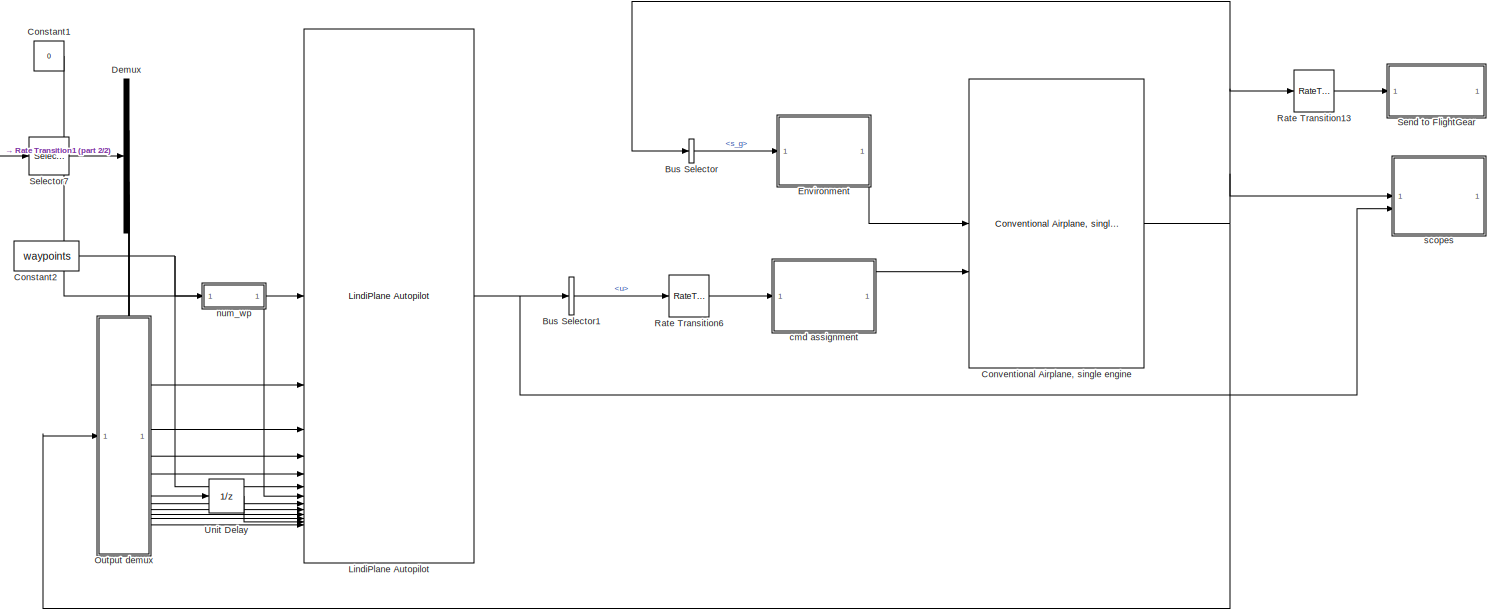
[diagram: root canvas - part 1/2, most of the canvas]
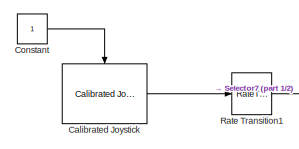
[diagram: root canvas - part 2/2, top left region]
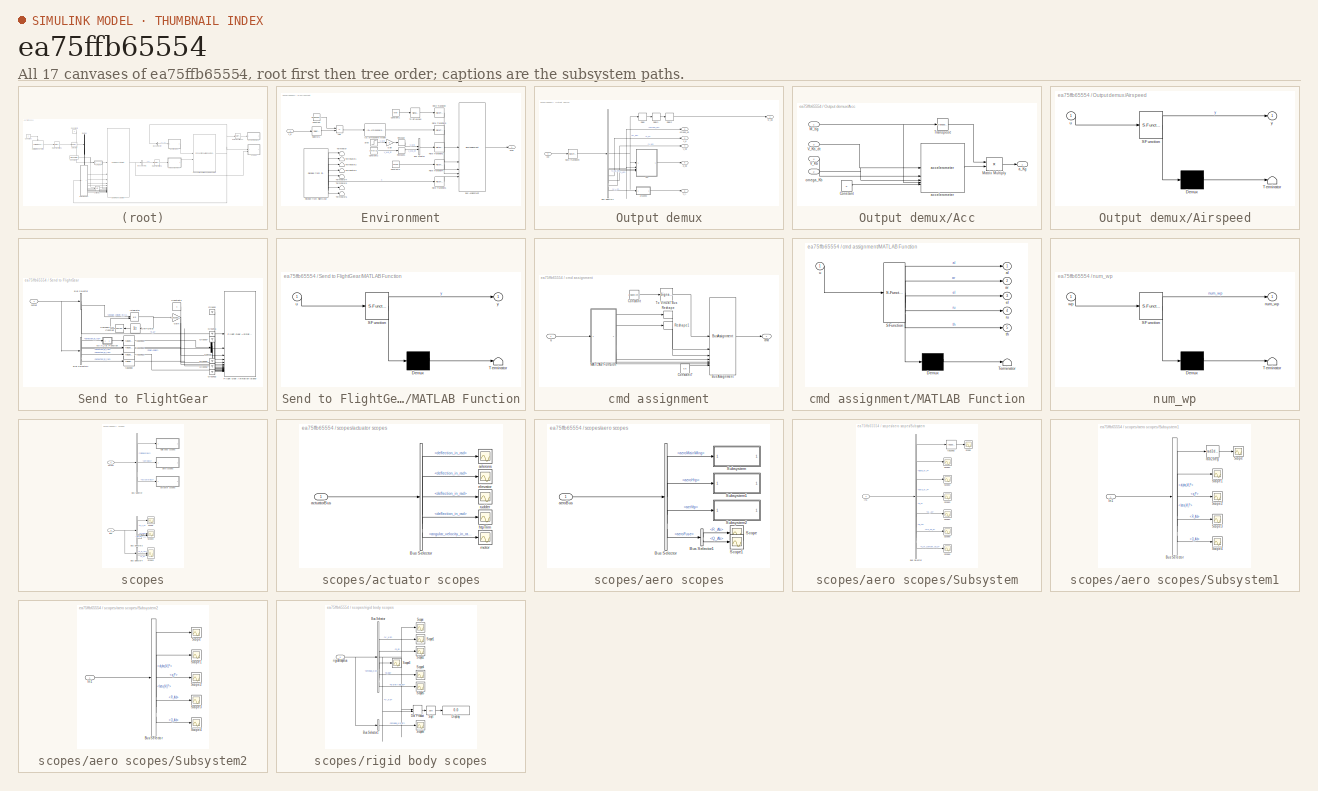
[diagram: thumbnail index - all 17 canvases of the model, root first then tree order]
MODEL slx_ea75ffb65554
KIND model
CONFIG AbsTol = auto
CONFIG EnableMultiTasking = off
CONFIG FixedStep = 1/400
CONFIG MaxStep = auto
CONFIG MinStep = auto
CONFIG RelTol = 1e-3
CONFIG SampleTimeConstraint = Unconstrained
CONFIG SolverName = ode1
CONFIG StartTime = 0.0
CONFIG StopTime = 60
BLOCK [BusSelector] Bus Selector
  OutputSignals = rigidBodyBus.s_g
BLOCK [BusSelector] Bus Selector1
  OutputSignals = inner_loop_indi.u
BLOCK [Reference] Calibrated Joystick  REF=joystick_lib/Calibrated Joystick  (lib defined in slx_c24d1f50ed98)
  SourceBlock = joystick_lib/Calibrated Joystick
  SourceProductName = LADAC
BLOCK [Constant] Constant
BLOCK [Constant] Constant1
  Value = 0
BLOCK [Constant] Constant2
  Value = waypoints
BLOCK [Reference] Conventional Airplane, single engine  REF=conventional_airplane_single_engine_lib/Conventional Airplane,  (lib defined in slx_fd2fac8ad290)
single engine
  SourceBlock = conventional_airplane_single_engine_lib/Conventional Airplane,\nsingle engine
  SourceProductName = LADAC
BLOCK [Demux] Demux
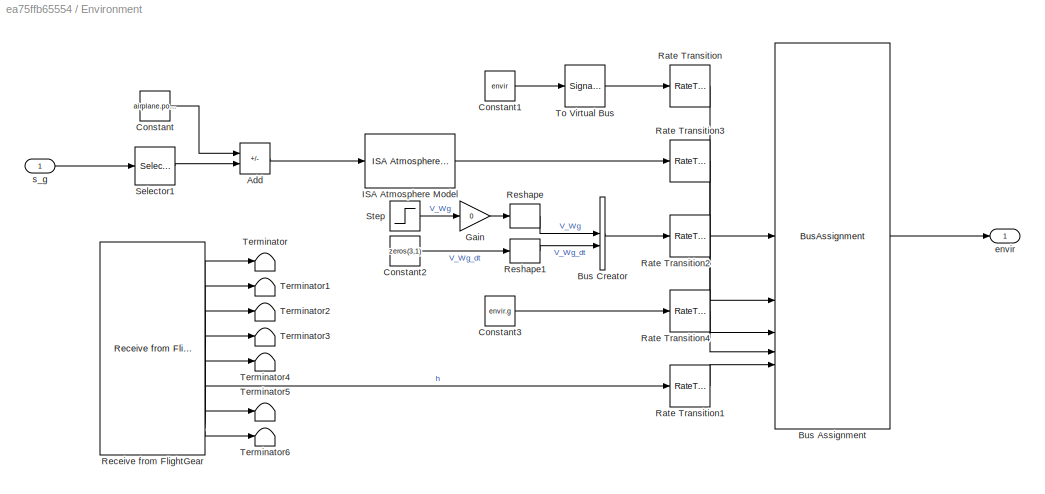
BLOCK [SubSystem] Environment
BLOCK [Sum] Environment/Add
  IconShape = rectangular
  Inputs = +-
BLOCK [BusAssignment] Environment/Bus Assignment
  AssignedSignals = atmosphere,wind,g,alt_ground
BLOCK [BusCreator] Environment/Bus Creator
  DisplayOption = bar
  InheritFromInputs = on
  Inputs = 2
BLOCK [Constant] Environment/Constant
  Value = airplane.posRef.alt
BLOCK [Constant] Environment/Constant1
  OutDataTypeStr = Bus: envirBus
  Value = envir
BLOCK [Constant] Environment/Constant2
  Value = zeros(3,1)
BLOCK [Constant] Environment/Constant3
  Value = envir.g
BLOCK [Gain] Environment/Gain
  Gain = 0
BLOCK [Reference] Environment/ISA Atmosphere Model  REF=atmosphere_lib/ISA Atmosphere Model  (lib defined in slx_398a0eb2fa35)
  SourceBlock = atmosphere_lib/ISA Atmosphere Model
  SourceProductName = LADAC
BLOCK [RateTransition] Environment/Rate Transition
BLOCK [RateTransition] Environment/Rate Transition1
BLOCK [RateTransition] Environment/Rate Transition2
BLOCK [RateTransition] Environment/Rate Transition3
BLOCK [RateTransition] Environment/Rate Transition4
BLOCK [Reference] Environment/Receive from FlightGear  REF=flightgear_visualization_lib/Receive from FlightGear  (lib defined in slx_722f04e3a3fc)
  SourceBlock = flightgear_visualization_lib/Receive from FlightGear
  SourceProductName = LADAC
BLOCK [Reshape] Environment/Reshape
  OutputDimensionality = Column vector (2-D)
BLOCK [Reshape] Environment/Reshape1
  OutputDimensionality = Column vector (2-D)
BLOCK [Selector] Environment/Selector1
  IndexOptions = Index vector (dialog)
  Indices = 3
  InputPortWidth = 3
  OutputSizes = 1
BLOCK [Step] Environment/Step
  After = [0;9;0]
  SampleTime = 0
  Time = 3
BLOCK [Terminator] Environment/Terminator
BLOCK [Terminator] Environment/Terminator1
BLOCK [Terminator] Environment/Terminator2
BLOCK [Terminator] Environment/Terminator3
BLOCK [Terminator] Environment/Terminator4
BLOCK [Terminator] Environment/Terminator5
BLOCK [Terminator] Environment/Terminator6
BLOCK [SignalConversion] Environment/To Virtual Bus
  ConversionOutput = Virtual bus
  OverrideOpt = off
BLOCK [Outport] Environment/envir
  VectorParamsAs1DForOutWhenUnconnected = off
BLOCK [Inport] Environment/s_g
BLOCK [Reference] LindiPlane Autopilot  REF=lindiPlane_lib/LindiPlane Autopilot
  SourceBlock = lindiPlane_lib/LindiPlane Autopilot
BLOCK [SubSystem] Output demux
BLOCK [SubSystem] Output demux/Acc
BLOCK [Constant] Output demux/Acc/Constant
  OutDataTypeStr = Inherit: Inherit via back propagation
  Value = 0
BLOCK [Inport] Output demux/Acc/M_bg
BLOCK [Product] Output demux/Acc/Matrix Multiply
  Multiplication = Matrix(*)
BLOCK [Math] Output demux/Acc/Transpose
  Operator = transpose
  SignedPower = on
BLOCK [Inport] Output demux/Acc/V_Kb
  Port = 4
BLOCK [Inport] Output demux/Acc/V_Kb_dt
  Port = 3
BLOCK [Outport] Output demux/Acc/a_Kg
  VectorParamsAs1DForOutWhenUnconnected = off
BLOCK [Reference] Output demux/Acc/accelerometer  REF=sensors_lib/accelerometer  (lib defined in mdl_052e9be48c24, mdl_88e42053cf8c, +1 more)
  SourceBlock = sensors_lib/accelerometer
  SourceProductName = LADAC
  SourceType = SubSystem
BLOCK [Inport] Output demux/Acc/omega_Kb
  Port = 2
BLOCK [SubSystem] Output demux/Airspeed
  ErrorFcn = Stateflow.Translate.translate
  PermitHierarchicalResolution = ExplicitOnly
  SFBlockType = MATLAB Function
  TreatAsAtomicUnit = on
BLOCK [Demux] Output demux/Airspeed/ Demux 
  Outputs = 1
BLOCK [S-Function] Output demux/Airspeed/ SFunction 
  EnableBusSupport = on
  FunctionName = sf_sfun
  PortCounts = [1 2]
  SFcnIsStateOwnerBlock = off
  SFunctionDeploymentMode = off
  Tag = Stateflow S-Function 1
BLOCK [Terminator] Output demux/Airspeed/ Terminator 
BLOCK [Inport] Output demux/Airspeed/u
BLOCK [Outport] Output demux/Airspeed/y
  VectorParamsAs1DForOutWhenUnconnected = off
BLOCK [BusSelector] Output demux/Bus Selector2
  OutputSignals = rigidBodyBus.M_bg,rigidBodyBus.omega_Kb,rigidBodyBus.s_g,rigidBodyBus.V_Kg,rigidBodyBus.V_Kb_dt,rigidBodyBus.V_Kb,aeroBus.aeroMainWing.aeroAxes.V_A_P
BLOCK [Delay] Output demux/Delay
  DelayLength = 1
  InitialCondition = eye(3)
  InputPortMap = u0
BLOCK [Delay] Output demux/Delay1
  DelayLength = 1
  InitialCondition = eye(3)
  InputPortMap = u0
BLOCK [Delay] Output demux/Delay2
  DelayLength = 1
  InitialCondition = eye(3)
  InputPortMap = u0
BLOCK [Outport] Output demux/M_bg
  VectorParamsAs1DForOutWhenUnconnected = off
BLOCK [RateTransition] Output demux/Rate Transition9
BLOCK [Outport] Output demux/V_A
  Port = 6
  VectorParamsAs1DForOutWhenUnconnected = off
BLOCK [Outport] Output demux/V_Kg
  Port = 4
  VectorParamsAs1DForOutWhenUnconnected = off
BLOCK [Outport] Output demux/a_Kg
  Port = 5
  VectorParamsAs1DForOutWhenUnconnected = off
BLOCK [Outport] Output demux/omega_Kb
  Port = 2
  VectorParamsAs1DForOutWhenUnconnected = off
BLOCK [Inport] Output demux/out
BLOCK [Outport] Output demux/s_g
  Port = 3
  VectorParamsAs1DForOutWhenUnconnected = off
BLOCK [RateTransition] Rate Transition1
BLOCK [RateTransition] Rate Transition13
  OutPortSampleTime = 1/50
BLOCK [RateTransition] Rate Transition6
BLOCK [Selector] Selector7
  IndexOptions = Index vector (dialog)
  Indices = [1:4]
  InputPortWidth = 8
  OutputSizes = 1
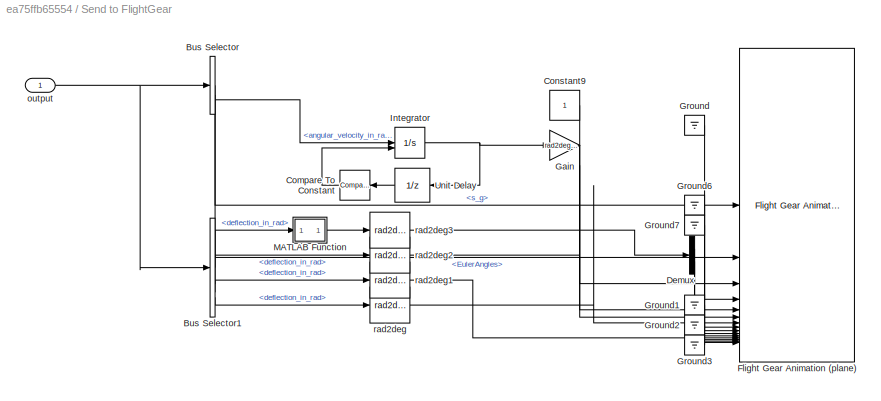
BLOCK [SubSystem] Send to FlightGear
BLOCK [BusSelector] Send to FlightGear/Bus Selector
  OutputSignals = rigidBodyBus.s_g,rigidBodyBus.EulerAngles,actuatorBus.motorBus.angular_velocity_in_rad_per_s
BLOCK [BusSelector] Send to FlightGear/Bus Selector1
  OutputSignals = actuatorBus.aileronsBus.deflection_in_rad,actuatorBus.elevatorBus.deflection_in_rad,actuatorBus.rudderBus.deflection_in_rad,actuatorBus.htpTrimBus.deflection_in_rad
BLOCK [Reference] Send to FlightGear/Compare To Constant  REF=simulink/Logic and Bit
Operations/Compare
To Constant
  NameLocation = top
  SourceBlock = simulink/Logic and Bit\nOperations/Compare\nTo Constant
  SourceType = Compare To Constant
BLOCK [Constant] Send to FlightGear/Constant9
BLOCK [Demux] Send to FlightGear/Demux
  Outputs = 2
BLOCK [Reference] Send to FlightGear/Flight Gear Animation (plane)  REF=flightgear_visualization_lib/Flight Gear Animation (plane)  (lib defined in slx_722f04e3a3fc)
  SourceBlock = flightgear_visualization_lib/Flight Gear Animation (plane)
  SourceProductName = LADAC
BLOCK [Gain] Send to FlightGear/Gain
  Gain = rad2deg([1;0;0;0])
BLOCK [Ground] Send to FlightGear/Ground
BLOCK [Ground] Send to FlightGear/Ground1
BLOCK [Ground] Send to FlightGear/Ground2
BLOCK [Ground] Send to FlightGear/Ground3
BLOCK [Ground] Send to FlightGear/Ground6
BLOCK [Ground] Send to FlightGear/Ground7
BLOCK [Integrator] Send to FlightGear/Integrator
  ExternalReset = rising
BLOCK [SubSystem] Send to FlightGear/MATLAB Function
  ErrorFcn = Stateflow.Translate.translate
  PermitHierarchicalResolution = ExplicitOnly
  SFBlockType = MATLAB Function
  TreatAsAtomicUnit = on
BLOCK [Demux] Send to FlightGear/MATLAB Function/ Demux 
  Outputs = 1
BLOCK [S-Function] Send to FlightGear/MATLAB Function/ SFunction 
  EnableBusSupport = on
  FunctionName = sf_sfun
  PortCounts = [1 2]
  SFcnIsStateOwnerBlock = off
  SFunctionDeploymentMode = off
  Tag = Stateflow S-Function 3
BLOCK [Terminator] Send to FlightGear/MATLAB Function/ Terminator 
BLOCK [Inport] Send to FlightGear/MATLAB Function/u
BLOCK [Outport] Send to FlightGear/MATLAB Function/y
  VectorParamsAs1DForOutWhenUnconnected = off
BLOCK [UnitDelay] Send to FlightGear/Unit Delay
  HasFrameUpgradeWarning = on
  NameLocation = top
  SampleTime = -1
BLOCK [Inport] Send to FlightGear/output
BLOCK [Reference] Send to FlightGear/rad2deg  REF=unit_conversions_lib/rad2deg  (lib defined in slx_ae2855d4d91e)
  SourceBlock = unit_conversions_lib/rad2deg
  SourceProductName = LADAC
BLOCK [Reference] Send to FlightGear/rad2deg1  REF=unit_conversions_lib/rad2deg  (lib defined in slx_ae2855d4d91e)
  SourceBlock = unit_conversions_lib/rad2deg
  SourceProductName = LADAC
BLOCK [Reference] Send to FlightGear/rad2deg2  REF=unit_conversions_lib/rad2deg  (lib defined in slx_ae2855d4d91e)
  SourceBlock = unit_conversions_lib/rad2deg
  SourceProductName = LADAC
BLOCK [Reference] Send to FlightGear/rad2deg3  REF=unit_conversions_lib/rad2deg  (lib defined in slx_ae2855d4d91e)
  SourceBlock = unit_conversions_lib/rad2deg
  SourceProductName = LADAC
BLOCK [UnitDelay] Unit Delay
  HasFrameUpgradeWarning = on
  SampleTime = -1
BLOCK [SubSystem] cmd assignment
BLOCK [BusAssignment] cmd assignment/Bus Assignment
  AssignedSignals = aileron_left,aileron_right,elevator,rudder,throttle,htp_trim
BLOCK [Constant] cmd assignment/Constant
  OutDataTypeStr = Bus: cmdBus
  Value = airplane.cmd
BLOCK [Constant] cmd assignment/Constant7
  Value = 0.5
BLOCK [SubSystem] cmd assignment/MATLAB Function
  ErrorFcn = Stateflow.Translate.translate
  PermitHierarchicalResolution = ExplicitOnly
  SFBlockType = MATLAB Function
  TreatAsAtomicUnit = on
BLOCK [Demux] cmd assignment/MATLAB Function/ Demux 
  Outputs = 1
BLOCK [S-Function] cmd assignment/MATLAB Function/ SFunction 
  EnableBusSupport = on
  FunctionName = sf_sfun
  PortCounts = [1 6]
  SFcnIsStateOwnerBlock = off
  SFunctionDeploymentMode = off
  Tag = Stateflow S-Function 17
BLOCK [Terminator] cmd assignment/MATLAB Function/ Terminator 
BLOCK [Outport] cmd assignment/MATLAB Function/al
  VectorParamsAs1DForOutWhenUnconnected = off
BLOCK [Outport] cmd assignment/MATLAB Function/ar
  Port = 2
  VectorParamsAs1DForOutWhenUnconnected = off
BLOCK [Outport] cmd assignment/MATLAB Function/el
  Port = 3
  VectorParamsAs1DForOutWhenUnconnected = off
BLOCK [Outport] cmd assignment/MATLAB Function/ru
  Port = 4
  VectorParamsAs1DForOutWhenUnconnected = off
BLOCK [Outport] cmd assignment/MATLAB Function/th
  Port = 5
  VectorParamsAs1DForOutWhenUnconnected = off
BLOCK [Inport] cmd assignment/MATLAB Function/u
BLOCK [Reshape] cmd assignment/Reshape
  OutputDimensionality = Row vector (2-D)
BLOCK [Reshape] cmd assignment/Reshape1
  OutputDimensionality = Row vector (2-D)
BLOCK [SignalConversion] cmd assignment/To Virtual Bus
  ConversionOutput = Virtual bus
  OverrideOpt = off
BLOCK [Outport] cmd assignment/cmd
  VectorParamsAs1DForOutWhenUnconnected = off
BLOCK [Inport] cmd assignment/u
BLOCK [SubSystem] num_wp
  ErrorFcn = Stateflow.Translate.translate
  PermitHierarchicalResolution = ExplicitOnly
  SFBlockType = MATLAB Function
  TreatAsAtomicUnit = on
BLOCK [Demux] num_wp/ Demux 
  Outputs = 1
BLOCK [S-Function] num_wp/ SFunction 
  EnableBusSupport = on
  FunctionName = sf_sfun
  PortCounts = [1 2]
  SFcnIsStateOwnerBlock = off
  SFunctionDeploymentMode = off
  Tag = Stateflow S-Function 20
BLOCK [Terminator] num_wp/ Terminator 
BLOCK [Outport] num_wp/num_wp
  VectorParamsAs1DForOutWhenUnconnected = off
BLOCK [Inport] num_wp/wp
BLOCK [SubSystem] scopes
BLOCK [BusSelector] scopes/Bus Selector
  OutputSignals = rigidBodyBus,aeroBus,actuatorBus
BLOCK [BusSelector] scopes/Bus Selector3
  OutputSignals = pos_control.error.e_s_g,wpnav.wp_idx,wpnav.stage,wpnav.t
BLOCK [BusSelector] scopes/Bus Selector4
  OutputSignals = pos_control.reference.s_g_ref,pos_control.measure.s_g
BLOCK [Scope] scopes/Scope
  Floating = off
  NumInputPorts = 1
  ScopeSpecificationString = Simulink.scopes.TimeScopeBlockCfg('CurrentConfiguration', extmgr.ConfigurationSet(extmgr.Configuration('Core','General UI',true),extmgr.Configuration('Core','Source UI',true),extmgr.Configuration('Sources','WiredSimulink',true,'DataLoggingVariableName','ScopeData1'),extmgr.Configuration('Visuals','Time Domain',true,'SerializedDisplays',{struct('MinYLimReal','-5.94441','MaxYLimReal','6.13235','YLab...<+1516ch>
BLOCK [Scope] scopes/Scope2
  Floating = off
  NumInputPorts = 3
  ScopeSpecificationString = Simulink.scopes.TimeScopeBlockCfg('CurrentConfiguration', extmgr.ConfigurationSet(extmgr.Configuration('Core','General UI',true),extmgr.Configuration('Core','Source UI',true),extmgr.Configuration('Sources','WiredSimulink',true,'DataLoggingVariableName','ScopeData2'),extmgr.Configuration('Visuals','Time Domain',true,'SerializedDisplays',{struct('MinYLimReal','-0.5','MaxYLimReal','4.5','YLabelReal',...<+1458ch>
BLOCK [Scope] scopes/Scope3
  Floating = off
  NumInputPorts = 2
  ScopeSpecificationString = Simulink.scopes.TimeScopeBlockCfg('CurrentConfiguration', extmgr.ConfigurationSet(extmgr.Configuration('Core','General UI',true),extmgr.Configuration('Core','Source UI',true),extmgr.Configuration('Sources','WiredSimulink',true,'DataLoggingVariableName','ScopeData3'),extmgr.Configuration('Visuals','Time Domain',true,'SerializedDisplays',{struct('MinYLimReal','-158.06295','MaxYLimReal','113.0501','Y...<+1701ch>
BLOCK [SubSystem] scopes/actuator scopes
BLOCK [BusSelector] scopes/actuator scopes/Bus Selector
  OutputSignals = aileronsBus.deflection_in_rad,elevatorBus.deflection_in_rad,rudderBus.deflection_in_rad,htpTrimBus.deflection_in_rad,motorBus.angular_velocity_in_rad_per_s
BLOCK [Inport] scopes/actuator scopes/actuatorBus
BLOCK [Scope] scopes/actuator scopes/ailerons
  Floating = off
  NumInputPorts = 1
  ScopeSpecificationString = Simulink.scopes.TimeScopeBlockCfg('CurrentConfiguration', extmgr.ConfigurationSet(extmgr.Configuration('Core','General UI',true),extmgr.Configuration('Core','Source UI',true),extmgr.Configuration('Sources','WiredSimulink',true,'DataLoggingVariableName','ScopeData1'),extmgr.Configuration('Visuals','Time Domain',true,'SerializedDisplays',{struct('MinYLimReal','-0.16423','MaxYLimReal','0.19947','YLab...<+1688ch>
BLOCK [Scope] scopes/actuator scopes/elevator
  Floating = off
  NumInputPorts = 1
  ScopeSpecificationString = Simulink.scopes.TimeScopeBlockCfg('CurrentConfiguration', extmgr.ConfigurationSet(extmgr.Configuration('Core','General UI',true),extmgr.Configuration('Core','Source UI',true),extmgr.Configuration('Sources','WiredSimulink',true,'DataLoggingVariableName','ScopeData2'),extmgr.Configuration('Visuals','Time Domain',true,'SerializedDisplays',{struct('MinYLimReal','-0.42991','MaxYLimReal','0.20403','YLab...<+1479ch>
BLOCK [Scope] scopes/actuator scopes/htpTrim
  Floating = off
  NumInputPorts = 1
  ScopeSpecificationString = Simulink.scopes.TimeScopeBlockCfg('CurrentConfiguration', extmgr.ConfigurationSet(extmgr.Configuration('Core','General UI',true),extmgr.Configuration('Core','Source UI',true),extmgr.Configuration('Sources','WiredSimulink',true,'DataLoggingVariableName','ScopeData4'),extmgr.Configuration('Visuals','Time Domain',true,'SerializedDisplays',{struct('MinYLimReal','-0.00393','MaxYLimReal','0.03536','YLab...<+1422ch>
BLOCK [Scope] scopes/actuator scopes/motor
  Floating = off
  NumInputPorts = 1
  ScopeSpecificationString = Simulink.scopes.TimeScopeBlockCfg('CurrentConfiguration', extmgr.ConfigurationSet(extmgr.Configuration('Core','General UI',true),extmgr.Configuration('Core','Source UI',true),extmgr.Configuration('Sources','WiredSimulink',true,'DataLoggingVariableName','ScopeData5'),extmgr.Configuration('Visuals','Time Domain',true,'SerializedDisplays',{struct('MinYLimReal','-108.7455','MaxYLimReal','978.7095','YL...<+1479ch>
BLOCK [Scope] scopes/actuator scopes/rudder
  Floating = off
  NumInputPorts = 1
  ScopeSpecificationString = Simulink.scopes.TimeScopeBlockCfg('CurrentConfiguration', extmgr.ConfigurationSet(extmgr.Configuration('Core','General UI',true),extmgr.Configuration('Core','Source UI',true),extmgr.Configuration('Sources','WiredSimulink',true,'DataLoggingVariableName','ScopeData3'),extmgr.Configuration('Visuals','Time Domain',true,'SerializedDisplays',{struct('MinYLimReal','-0.17156','MaxYLimReal','0.13233','YLab...<+1465ch>
BLOCK [SubSystem] scopes/aero scopes
BLOCK [BusSelector] scopes/aero scopes/Bus Selector
  OutputSignals = aeroMainWing,aeroHtp,aerVtp,aeroFuse
BLOCK [BusSelector] scopes/aero scopes/Bus Selector1
  OutputSignals = R_Ab,Q_Ab
BLOCK [Scope] scopes/aero scopes/Scope
  Floating = off
  NumInputPorts = 1
  ScopeSpecificationString = Simulink.scopes.TimeScopeBlockCfg('CurrentConfiguration', extmgr.ConfigurationSet(extmgr.Configuration('Core','General UI',true),extmgr.Configuration('Core','Source UI',true),extmgr.Configuration('Sources','WiredSimulink',true,'DataLoggingVariableName','ScopeData8'),extmgr.Configuration('Visuals','Time Domain',true,'SerializedDisplays',{struct('MinYLimReal','-4.29896','MaxYLimReal','2.72976','YLab...<+1494ch>
BLOCK [Scope] scopes/aero scopes/Scope1
  Floating = off
  NumInputPorts = 1
  ScopeSpecificationString = Simulink.scopes.TimeScopeBlockCfg('CurrentConfiguration', extmgr.ConfigurationSet(extmgr.Configuration('Core','General UI',true),extmgr.Configuration('Core','Source UI',true),extmgr.Configuration('Sources','WiredSimulink',true,'DataLoggingVariableName','ScopeData9'),extmgr.Configuration('Visuals','Time Domain',true,'SerializedDisplays',{struct('MinYLimReal','-0.00344','MaxYLimReal','0.00303','YLab...<+1513ch>
BLOCK [SubSystem] scopes/aero scopes/Subsystem
BLOCK [BusSelector] scopes/aero scopes/Subsystem/Bus Selector
  OutputSignals = aeroAxes.alpha_M_P,aeroAxes.beta_M_P,aeroAxes.q_P,dynamicsBody.R_Ab,dynamicsBody.Q_Ab,dynamicsBody.xyz_np_b,dynamicsBody.C_m_camber_np_b
BLOCK [Inport] scopes/aero scopes/Subsystem/In1
BLOCK [Scope] scopes/aero scopes/Subsystem/Scope
  Floating = off
  NumInputPorts = 1
  ScopeSpecificationString = Simulink.scopes.TimeScopeBlockCfg('CurrentConfiguration', extmgr.ConfigurationSet(extmgr.Configuration('Core','General UI',true),extmgr.Configuration('Core','Source UI',true),extmgr.Configuration('Sources','WiredSimulink',true,'DataLoggingVariableName','ScopeData3'),extmgr.Configuration('Visuals','Time Domain',true,'SerializedDisplays',{struct('MinYLimReal','-38.50324','MaxYLimReal','61.17596','YL...<+1486ch>
BLOCK [Scope] scopes/aero scopes/Subsystem/Scope1
  Floating = off
  NumInputPorts = 1
  ScopeSpecificationString = Simulink.scopes.TimeScopeBlockCfg('CurrentConfiguration', extmgr.ConfigurationSet(extmgr.Configuration('Core','General UI',true),extmgr.Configuration('Core','Source UI',true),extmgr.Configuration('Sources','WiredSimulink',true,'DataLoggingVariableName','ScopeData4'),extmgr.Configuration('Visuals','Time Domain',true,'SerializedDisplays',{struct('MinYLimReal','-0.278','MaxYLimReal','0.31424','YLabel...<+1463ch>
BLOCK [Scope] scopes/aero scopes/Subsystem/Scope2
  Floating = off
  NumInputPorts = 1
  ScopeSpecificationString = Simulink.scopes.TimeScopeBlockCfg('CurrentConfiguration', extmgr.ConfigurationSet(extmgr.Configuration('Core','General UI',true),extmgr.Configuration('Core','Source UI',true),extmgr.Configuration('Sources','WiredSimulink',true,'DataLoggingVariableName','ScopeData5'),extmgr.Configuration('Visuals','Time Domain',true),extmgr.Configuration('Tools','Plot Navigation',true),extmgr.Configuration('Tools',...<+40ch>  <repeated x3 — deduplicated; at blocks: Scope2, Scope4>
BLOCK [Scope] scopes/aero scopes/Subsystem/Scope3
  Floating = off
  NumInputPorts = 1
  ScopeSpecificationString = Simulink.scopes.TimeScopeBlockCfg('CurrentConfiguration', extmgr.ConfigurationSet(extmgr.Configuration('Core','General UI',true),extmgr.Configuration('Core','Source UI',true),extmgr.Configuration('Sources','WiredSimulink',true,'DataLoggingVariableName','ScopeData6'),extmgr.Configuration('Visuals','Time Domain',true,'SerializedDisplays',{struct('MinYLimReal','-44.41944','MaxYLimReal','10.15561','YL...<+1450ch>
BLOCK [Scope] scopes/aero scopes/Subsystem/Scope4
  Floating = off
  NumInputPorts = 1
  ScopeSpecificationString = Simulink.scopes.TimeScopeBlockCfg('CurrentConfiguration', extmgr.ConfigurationSet(extmgr.Configuration('Core','General UI',true),extmgr.Configuration('Core','Source UI',true),extmgr.Configuration('Sources','WiredSimulink',true,'DataLoggingVariableName','ScopeData7'),extmgr.Configuration('Visuals','Time Domain',true,'SerializedDisplays',{struct('MinYLimReal','-1.14355','MaxYLimReal','0.48604','YLab...<+1458ch>
BLOCK [Scope] scopes/aero scopes/Subsystem/Scope5
  Floating = off
  NumInputPorts = 1
  ScopeSpecificationString = Simulink.scopes.TimeScopeBlockCfg('CurrentConfiguration', extmgr.ConfigurationSet(extmgr.Configuration('Core','General UI',true),extmgr.Configuration('Core','Source UI',true),extmgr.Configuration('Sources','WiredSimulink',true,'DataLoggingVariableName','ScopeData12'),extmgr.Configuration('Visuals','Time Domain',true,'SerializedDisplays',{struct('MinYLimReal','-0.7438','MaxYLimReal','0.72425','YLab...<+1652ch>
BLOCK [Scope] scopes/aero scopes/Subsystem/Scope6
  Floating = off
  NumInputPorts = 1
  ScopeSpecificationString = Simulink.scopes.TimeScopeBlockCfg('CurrentConfiguration', extmgr.ConfigurationSet(extmgr.Configuration('Core','General UI',true),extmgr.Configuration('Core','Source UI',true),extmgr.Configuration('Sources','WiredSimulink',true,'DataLoggingVariableName','ScopeData1'),extmgr.Configuration('Visuals','Time Domain',true,'SerializedDisplays',{struct('MinYLimReal','-0.11083','MaxYLimReal','0.05149','YLab...<+1602ch>
BLOCK [Reference] scopes/aero scopes/Subsystem/rad2deg  REF=unit_conversions_lib/rad2deg  (lib defined in slx_ae2855d4d91e)
  SourceBlock = unit_conversions_lib/rad2deg
  SourceProductName = LADAC
BLOCK [SubSystem] scopes/aero scopes/Subsystem1
BLOCK [BusSelector] scopes/aero scopes/Subsystem1/Bus Selector
  OutputSignals = aeroAxes.alpha_M_P,aeroAxes.beta_M_P,aeroAxes.q_P,dynamicsBody.R_Ab,dynamicsBody.Q_Ab
BLOCK [Inport] scopes/aero scopes/Subsystem1/In1
BLOCK [Scope] scopes/aero scopes/Subsystem1/Scope
  Floating = off
  NumInputPorts = 1
  ScopeSpecificationString = Simulink.scopes.TimeScopeBlockCfg('CurrentConfiguration', extmgr.ConfigurationSet(extmgr.Configuration('Core','General UI',true),extmgr.Configuration('Core','Source UI',true),extmgr.Configuration('Sources','WiredSimulink',true,'DataLoggingVariableName','ScopeData3'),extmgr.Configuration('Visuals','Time Domain',true,'SerializedDisplays',{struct('MinYLimReal','-7.22371','MaxYLimReal','26.21378','YLa...<+1455ch>
BLOCK [Scope] scopes/aero scopes/Subsystem1/Scope1
  Floating = off
  NumInputPorts = 1
  ScopeSpecificationString = Simulink.scopes.TimeScopeBlockCfg('CurrentConfiguration', extmgr.ConfigurationSet(extmgr.Configuration('Core','General UI',true),extmgr.Configuration('Core','Source UI',true),extmgr.Configuration('Sources','WiredSimulink',true,'DataLoggingVariableName','ScopeData4'),extmgr.Configuration('Visuals','Time Domain',true,'SerializedDisplays',{struct('MinYLimReal','-0.40678','MaxYLimReal','0.98354','YLab...<+1430ch>
BLOCK [Scope] scopes/aero scopes/Subsystem1/Scope2
  Floating = off
  NumInputPorts = 1
  ScopeSpecificationString = Simulink.scopes.TimeScopeBlockCfg('CurrentConfiguration', extmgr.ConfigurationSet(extmgr.Configuration('Core','General UI',true),extmgr.Configuration('Core','Source UI',true),extmgr.Configuration('Sources','WiredSimulink',true,'DataLoggingVariableName','ScopeData5'),extmgr.Configuration('Visuals','Time Domain',true,'SerializedDisplays',{struct('MinYLimReal','165.0715','MaxYLimReal','265.67716','YL...<+1386ch>
BLOCK [Scope] scopes/aero scopes/Subsystem1/Scope3
  Floating = off
  NumInputPorts = 1
  ScopeSpecificationString = Simulink.scopes.TimeScopeBlockCfg('CurrentConfiguration', extmgr.ConfigurationSet(extmgr.Configuration('Core','General UI',true),extmgr.Configuration('Core','Source UI',true),extmgr.Configuration('Sources','WiredSimulink',true,'DataLoggingVariableName','ScopeData6'),extmgr.Configuration('Visuals','Time Domain',true,'SerializedDisplays',{struct('MinYLimReal','-1.25595','MaxYLimReal','0.52297','YLab...<+1487ch>
BLOCK [Scope] scopes/aero scopes/Subsystem1/Scope4
  Floating = off
  NumInputPorts = 1
  ScopeSpecificationString = Simulink.scopes.TimeScopeBlockCfg('CurrentConfiguration', extmgr.ConfigurationSet(extmgr.Configuration('Core','General UI',true),extmgr.Configuration('Core','Source UI',true),extmgr.Configuration('Sources','WiredSimulink',true,'DataLoggingVariableName','ScopeData7'),extmgr.Configuration('Visuals','Time Domain',true,'SerializedDisplays',{struct('MinYLimReal','-1.24313','MaxYLimReal','0.67063','YLab...<+1458ch>
BLOCK [Reference] scopes/aero scopes/Subsystem1/rad2deg  REF=unit_conversions_lib/rad2deg  (lib defined in slx_ae2855d4d91e)
  SourceBlock = unit_conversions_lib/rad2deg
  SourceProductName = LADAC
BLOCK [SubSystem] scopes/aero scopes/Subsystem2
BLOCK [BusSelector] scopes/aero scopes/Subsystem2/Bus Selector
  OutputSignals = aeroAxes.alpha_M_P,aeroAxes.beta_M_P,aeroAxes.q_P,dynamicsBody.R_Ab,dynamicsBody.Q_Ab
BLOCK [Inport] scopes/aero scopes/Subsystem2/In1
BLOCK [Scope] scopes/aero scopes/Subsystem2/Scope
  Floating = off
  NumInputPorts = 1
  ScopeSpecificationString = Simulink.scopes.TimeScopeBlockCfg('CurrentConfiguration', extmgr.ConfigurationSet(extmgr.Configuration('Core','General UI',true),extmgr.Configuration('Core','Source UI',true),extmgr.Configuration('Sources','WiredSimulink',true,'DataLoggingVariableName','ScopeData3'),extmgr.Configuration('Visuals','Time Domain',true,'SerializedDisplays',{struct('MinYLimReal','-0.0091','MaxYLimReal','0.08194','YLabe...<+1486ch>
BLOCK [Scope] scopes/aero scopes/Subsystem2/Scope1
  Floating = off
  NumInputPorts = 1
  ScopeSpecificationString = Simulink.scopes.TimeScopeBlockCfg('CurrentConfiguration', extmgr.ConfigurationSet(extmgr.Configuration('Core','General UI',true),extmgr.Configuration('Core','Source UI',true),extmgr.Configuration('Sources','WiredSimulink',true,'DataLoggingVariableName','ScopeData4'),extmgr.Configuration('Visuals','Time Domain',true,'SerializedDisplays',{struct('MinYLimReal','-0.04947','MaxYLimReal','0.04829','YLab...<+1486ch>
BLOCK [Scope] scopes/aero scopes/Subsystem2/Scope2
  Floating = off
  NumInputPorts = 1
BLOCK [Scope] scopes/aero scopes/Subsystem2/Scope3
  Floating = off
  NumInputPorts = 1
  ScopeSpecificationString = Simulink.scopes.TimeScopeBlockCfg('CurrentConfiguration', extmgr.ConfigurationSet(extmgr.Configuration('Core','General UI',true),extmgr.Configuration('Core','Source UI',true),extmgr.Configuration('Sources','WiredSimulink',true,'DataLoggingVariableName','ScopeData6'),extmgr.Configuration('Visuals','Time Domain',true,'SerializedDisplays',{struct('MinYLimReal','-0.28199','MaxYLimReal','0.15437','YLab...<+1461ch>
BLOCK [Scope] scopes/aero scopes/Subsystem2/Scope4
  Floating = off
  NumInputPorts = 1
  ScopeSpecificationString = Simulink.scopes.TimeScopeBlockCfg('CurrentConfiguration', extmgr.ConfigurationSet(extmgr.Configuration('Core','General UI',true),extmgr.Configuration('Core','Source UI',true),extmgr.Configuration('Sources','WiredSimulink',true,'DataLoggingVariableName','ScopeData7'),extmgr.Configuration('Visuals','Time Domain',true,'SerializedDisplays',{struct('MinYLimReal','-0.01092','MaxYLimReal','0.00318','YLab...<+1581ch>
BLOCK [Inport] scopes/aero scopes/aeroBus
BLOCK [Inport] scopes/lindi
  Port = 2
BLOCK [Inport] scopes/output
BLOCK [SubSystem] scopes/rigid body scopes
BLOCK [BusSelector] scopes/rigid body scopes/Bus Selector
  OutputSignals = V_Kb,V_Kg,s_g,omega_Kb,q_bg,EulerAngles
BLOCK [BusSelector] scopes/rigid body scopes/Bus Selector1
  OutputSignals = omega_Kb_dt
BLOCK [Display] scopes/rigid body scopes/Display
  Decimation = 1
BLOCK [DotProduct] scopes/rigid body scopes/Dot Product
  OutDataTypeStr = Inherit: Inherit via internal rule
BLOCK [Scope] scopes/rigid body scopes/Scope
  Floating = off
  NumInputPorts = 1
  ScopeSpecificationString = Simulink.scopes.TimeScopeBlockCfg('CurrentConfiguration', extmgr.ConfigurationSet(extmgr.Configuration('Core','General UI',true),extmgr.Configuration('Core','Source UI',true),extmgr.Configuration('Sources','WiredSimulink',true,'DataLoggingVariableName','ScopeData1'),extmgr.Configuration('Visuals','Time Domain',true,'SerializedDisplays',{struct('MinYLimReal','-1.60098','MaxYLimReal','0.9134','YLabe...<+1461ch>
BLOCK [Scope] scopes/rigid body scopes/Scope1
  Floating = off
  NumInputPorts = 1
  ScopeSpecificationString = Simulink.scopes.TimeScopeBlockCfg('CurrentConfiguration', extmgr.ConfigurationSet(extmgr.Configuration('Core','General UI',true),extmgr.Configuration('Core','Source UI',true),extmgr.Configuration('Sources','WiredSimulink',true,'DataLoggingVariableName','ScopeData2'),extmgr.Configuration('Visuals','Time Domain',true,'SerializedDisplays',{struct('MinYLimReal','-28.92052','MaxYLimReal','41.40763','YL...<+1587ch>
BLOCK [Scope] scopes/rigid body scopes/Scope2
  Floating = off
  NumInputPorts = 1
  ScopeSpecificationString = Simulink.scopes.TimeScopeBlockCfg('CurrentConfiguration', extmgr.ConfigurationSet(extmgr.Configuration('Core','General UI',true),extmgr.Configuration('Core','Source UI',true),extmgr.Configuration('Sources','WiredSimulink',true,'DataLoggingVariableName','s_g','DataLogging',true),extmgr.Configuration('Visuals','Time Domain',true,'SerializedDisplays',{struct('MinYLimReal','-4.8033','MaxYLimReal','9.2...<+1509ch>
BLOCK [Scope] scopes/rigid body scopes/Scope3
  Floating = off
  NumInputPorts = 1
  ScopeSpecificationString = Simulink.scopes.TimeScopeBlockCfg('CurrentConfiguration', extmgr.ConfigurationSet(extmgr.Configuration('Core','General UI',true),extmgr.Configuration('Core','Source UI',true),extmgr.Configuration('Sources','WiredSimulink',true,'DataLoggingVariableName','ScopeData4'),extmgr.Configuration('Visuals','Time Domain',true,'SerializedDisplays',{struct('MinYLimReal','-3.92657','MaxYLimReal','2.70169','YLab...<+1524ch>
BLOCK [Scope] scopes/rigid body scopes/Scope4
  Floating = off
  NumInputPorts = 1
BLOCK [Scope] scopes/rigid body scopes/Scope5
  Floating = off
  NumInputPorts = 1
  ScopeSpecificationString = Simulink.scopes.TimeScopeBlockCfg('CurrentConfiguration', extmgr.ConfigurationSet(extmgr.Configuration('Core','General UI',true),extmgr.Configuration('Core','Source UI',true),extmgr.Configuration('Sources','WiredSimulink',true,'DataLoggingVariableName','ScopeData6'),extmgr.Configuration('Visuals','Time Domain',true,'SerializedDisplays',{struct('MinYLimReal','-0.36385','MaxYLimReal','1.15154','YLab...<+1601ch>
BLOCK [Scope] scopes/rigid body scopes/Scope6
  Floating = off
  NumInputPorts = 1
  ScopeSpecificationString = Simulink.scopes.TimeScopeBlockCfg('CurrentConfiguration', extmgr.ConfigurationSet(extmgr.Configuration('Core','General UI',true),extmgr.Configuration('Core','Source UI',true),extmgr.Configuration('Sources','WiredSimulink',true,'DataLoggingVariableName','ScopeData6'),extmgr.Configuration('Visuals','Time Domain',true,'SerializedDisplays',{struct('MinYLimReal','-35.25832','MaxYLimReal','13.8699','YLa...<+1511ch>
BLOCK [Sqrt] scopes/rigid body scopes/Sqrt
BLOCK [Inport] scopes/rigid body scopes/rigidBodyBus
LINE Bus Selector1:1 -> Rate Transition6:1
LINE Bus Selector:1 -> Environment:1
LINE Calibrated Joystick:1 -> Rate Transition1:1
LINE Constant1:1 -> LindiPlane Autopilot:1
NET Constant2:1 -> LindiPlane Autopilot:6, num_wp:1
LINE Constant:1 -> Calibrated Joystick:enable
NET Conventional Airplane, single engine:1 -> Bus Selector:1, Output demux:1, Rate Transition13:1, scopes:1
LINE Demux:1 -> LindiPlane Autopilot:2
LINE Demux:2 -> LindiPlane Autopilot:3
LINE Demux:3 -> LindiPlane Autopilot:4
LINE Demux:4 -> LindiPlane Autopilot:5
LINE Environment/Add:1 -> Environment/ISA Atmosphere Model:1
LINE Environment/Bus Assignment:1 -> Environment/envir:1
LINE Environment/Bus Creator:1 -> Environment/Rate Transition2:1
LINE Environment/Constant1:1 -> Environment/To Virtual Bus:1
LINE Environment/Constant2:1 -> Environment/Reshape1:1
LINE Environment/Constant3:1 -> Environment/Rate Transition4:1
LINE Environment/Constant:1 -> Environment/Add:1
LINE Environment/Gain:1 -> Environment/Reshape:1
LINE Environment/ISA Atmosphere Model:1 -> Environment/Rate Transition3:1
LINE Environment/Rate Transition1:1 -> Environment/Bus Assignment:5
LINE Environment/Rate Transition2:1 -> Environment/Bus Assignment:3
LINE Environment/Rate Transition3:1 -> Environment/Bus Assignment:2
LINE Environment/Rate Transition4:1 -> Environment/Bus Assignment:4
LINE Environment/Rate Transition:1 -> Environment/Bus Assignment:1
LINE Environment/Receive from FlightGear:1 -> Environment/Terminator:1
LINE Environment/Receive from FlightGear:2 -> Environment/Terminator1:1
LINE Environment/Receive from FlightGear:3 -> Environment/Terminator2:1
LINE Environment/Receive from FlightGear:4 -> Environment/Terminator3:1
LINE Environment/Receive from FlightGear:5 -> Environment/Terminator4:1
LINE Environment/Receive from FlightGear:6 -> Environment/Rate Transition1:1
LINE Environment/Receive from FlightGear:7 -> Environment/Terminator5:1
LINE Environment/Receive from FlightGear:8 -> Environment/Terminator6:1
LINE Environment/Reshape1:1 -> Environment/Bus Creator:2
LINE Environment/Reshape:1 -> Environment/Bus Creator:1
LINE Environment/Selector1:1 -> Environment/Add:2
LINE Environment/Step:1 -> Environment/Gain:1
LINE Environment/To Virtual Bus:1 -> Environment/Rate Transition:1
LINE Environment/s_g:1 -> Environment/Selector1:1
LINE Environment:1 -> Conventional Airplane, single engine:1
NET LindiPlane Autopilot:1 -> Bus Selector1:1, scopes:2
LINE Output demux/Acc/Constant:1 -> Output demux/Acc/accelerometer:5
NET Output demux/Acc/M_bg:1 -> Output demux/Acc/Transpose:1, Output demux/Acc/accelerometer:4
LINE Output demux/Acc/Matrix Multiply:1 -> Output demux/Acc/a_Kg:1
LINE Output demux/Acc/Transpose:1 -> Output demux/Acc/Matrix Multiply:1
LINE Output demux/Acc/V_Kb:1 -> Output demux/Acc/accelerometer:2
LINE Output demux/Acc/V_Kb_dt:1 -> Output demux/Acc/accelerometer:1
LINE Output demux/Acc/accelerometer:1 -> Output demux/Acc/Matrix Multiply:2
LINE Output demux/Acc/omega_Kb:1 -> Output demux/Acc/accelerometer:3
LINE Output demux/Acc:1 -> Output demux/a_Kg:1
LINE Output demux/Airspeed:1 -> Output demux/V_A:1
NET Output demux/Bus Selector2:1 -> Output demux/Acc:1, Output demux/Delay:1
NET Output demux/Bus Selector2:2 -> Output demux/Acc:2, Output demux/omega_Kb:1
LINE Output demux/Bus Selector2:3 -> Output demux/s_g:1
LINE Output demux/Bus Selector2:4 -> Output demux/V_Kg:1
LINE Output demux/Bus Selector2:5 -> Output demux/Acc:3
LINE Output demux/Bus Selector2:6 -> Output demux/Acc:4
LINE Output demux/Bus Selector2:7 -> Output demux/Airspeed:1
LINE Output demux/Delay1:1 -> Output demux/Delay2:1
LINE Output demux/Delay2:1 -> Output demux/M_bg:1
LINE Output demux/Delay:1 -> Output demux/Delay1:1
LINE Output demux/Rate Transition9:1 -> Output demux/Bus Selector2:1
LINE Output demux/out:1 -> Output demux/Rate Transition9:1
LINE Output demux:1 -> LindiPlane Autopilot:8
LINE Output demux:2 -> LindiPlane Autopilot:9
LINE Output demux:3 -> LindiPlane Autopilot:10
LINE Output demux:4 -> LindiPlane Autopilot:11
LINE Output demux:5 -> Unit Delay:1
LINE Output demux:6 -> LindiPlane Autopilot:13
LINE Rate Transition13:1 -> Send to FlightGear:1
LINE Rate Transition1:1 -> Selector7:1
LINE Rate Transition6:1 -> cmd assignment:1
LINE Selector7:1 -> Demux:1
LINE Send to FlightGear/Bus Selector1:1 -> Send to FlightGear/MATLAB Function:1
LINE Send to FlightGear/Bus Selector1:2 -> Send to FlightGear/rad2deg2:1
LINE Send to FlightGear/Bus Selector1:3 -> Send to FlightGear/rad2deg1:1
LINE Send to FlightGear/Bus Selector1:4 -> Send to FlightGear/rad2deg:1
LINE Send to FlightGear/Bus Selector:1 -> Send to FlightGear/Flight Gear Animation (plane):1
LINE Send to FlightGear/Bus Selector:2 -> Send to FlightGear/Flight Gear Animation (plane):2
LINE Send to FlightGear/Bus Selector:3 -> Send to FlightGear/Integrator:1
LINE Send to FlightGear/Compare To Constant:1 -> Send to FlightGear/Integrator:2
LINE Send to FlightGear/Constant9:1 -> Send to FlightGear/Flight Gear Animation (plane):3
LINE Send to FlightGear/Demux:1 -> Send to FlightGear/Flight Gear Animation (plane):10
LINE Send to FlightGear/Demux:2 -> Send to FlightGear/Flight Gear Animation (plane):11
LINE Send to FlightGear/Gain:1 -> Send to FlightGear/Flight Gear Animation (plane):5
LINE Send to FlightGear/Ground1:1 -> Send to FlightGear/Flight Gear Animation (plane):13
LINE Send to FlightGear/Ground2:1 -> Send to FlightGear/Flight Gear Animation (plane):14
LINE Send to FlightGear/Ground3:1 -> Send to FlightGear/Flight Gear Animation (plane):15
LINE Send to FlightGear/Ground6:1 -> Send to FlightGear/Flight Gear Animation (plane):8
LINE Send to FlightGear/Ground7:1 -> Send to FlightGear/Flight Gear Animation (plane):9
LINE Send to FlightGear/Ground:1 -> Send to FlightGear/Flight Gear Animation (plane):4
NET Send to FlightGear/Integrator:1 -> Send to FlightGear/Gain:1, Send to FlightGear/Unit Delay:1
LINE Send to FlightGear/MATLAB Function:1 -> Send to FlightGear/rad2deg3:1
LINE Send to FlightGear/Unit Delay:1 -> Send to FlightGear/Compare To Constant:1
NET Send to FlightGear/output:1 -> Send to FlightGear/Bus Selector1:1, Send to FlightGear/Bus Selector:1
LINE Send to FlightGear/rad2deg1:1 -> Send to FlightGear/Flight Gear Animation (plane):12
LINE Send to FlightGear/rad2deg2:1 -> Send to FlightGear/Flight Gear Animation (plane):6
LINE Send to FlightGear/rad2deg3:1 -> Send to FlightGear/Demux:1
LINE Send to FlightGear/rad2deg:1 -> Send to FlightGear/Flight Gear Animation (plane):7
LINE Unit Delay:1 -> LindiPlane Autopilot:12
LINE cmd assignment/Bus Assignment:1 -> cmd assignment/cmd:1
LINE cmd assignment/Constant7:1 -> cmd assignment/Bus Assignment:7
LINE cmd assignment/Constant:1 -> cmd assignment/To Virtual Bus:1
LINE cmd assignment/MATLAB Function:1 -> cmd assignment/Reshape:1
LINE cmd assignment/MATLAB Function:2 -> cmd assignment/Reshape1:1
LINE cmd assignment/MATLAB Function:3 -> cmd assignment/Bus Assignment:4
LINE cmd assignment/MATLAB Function:4 -> cmd assignment/Bus Assignment:5
LINE cmd assignment/MATLAB Function:5 -> cmd assignment/Bus Assignment:6
LINE cmd assignment/Reshape1:1 -> cmd assignment/Bus Assignment:3
LINE cmd assignment/Reshape:1 -> cmd assignment/Bus Assignment:2
LINE cmd assignment/To Virtual Bus:1 -> cmd assignment/Bus Assignment:1
LINE cmd assignment/u:1 -> cmd assignment/MATLAB Function:1
LINE cmd assignment:1 -> Conventional Airplane, single engine:2
LINE num_wp:1 -> LindiPlane Autopilot:7
LINE scopes/Bus Selector3:1 -> scopes/Scope:1
LINE scopes/Bus Selector3:2 -> scopes/Scope2:1
LINE scopes/Bus Selector3:3 -> scopes/Scope2:2
LINE scopes/Bus Selector3:4 -> scopes/Scope2:3
LINE scopes/Bus Selector4:1 -> scopes/Scope3:1
LINE scopes/Bus Selector4:2 -> scopes/Scope3:2
LINE scopes/Bus Selector:1 -> scopes/rigid body scopes:1
LINE scopes/Bus Selector:2 -> scopes/aero scopes:1
LINE scopes/Bus Selector:3 -> scopes/actuator scopes:1
LINE scopes/actuator scopes/Bus Selector:1 -> scopes/actuator scopes/ailerons:1
LINE scopes/actuator scopes/Bus Selector:2 -> scopes/actuator scopes/elevator:1
LINE scopes/actuator scopes/Bus Selector:3 -> scopes/actuator scopes/rudder:1
LINE scopes/actuator scopes/Bus Selector:4 -> scopes/actuator scopes/htpTrim:1
LINE scopes/actuator scopes/Bus Selector:5 -> scopes/actuator scopes/motor:1
LINE scopes/actuator scopes/actuatorBus:1 -> scopes/actuator scopes/Bus Selector:1
LINE scopes/aero scopes/Bus Selector1:1 -> scopes/aero scopes/Scope:1
LINE scopes/aero scopes/Bus Selector1:2 -> scopes/aero scopes/Scope1:1
LINE scopes/aero scopes/Bus Selector:1 -> scopes/aero scopes/Subsystem:1
LINE scopes/aero scopes/Bus Selector:2 -> scopes/aero scopes/Subsystem1:1
LINE scopes/aero scopes/Bus Selector:3 -> scopes/aero scopes/Subsystem2:1
LINE scopes/aero scopes/Bus Selector:4 -> scopes/aero scopes/Bus Selector1:1
LINE scopes/aero scopes/Subsystem/Bus Selector:1 -> scopes/aero scopes/Subsystem/rad2deg:1
LINE scopes/aero scopes/Subsystem/Bus Selector:2 -> scopes/aero scopes/Subsystem/Scope1:1
LINE scopes/aero scopes/Subsystem/Bus Selector:3 -> scopes/aero scopes/Subsystem/Scope2:1
LINE scopes/aero scopes/Subsystem/Bus Selector:4 -> scopes/aero scopes/Subsystem/Scope3:1
LINE scopes/aero scopes/Subsystem/Bus Selector:5 -> scopes/aero scopes/Subsystem/Scope4:1
LINE scopes/aero scopes/Subsystem/Bus Selector:6 -> scopes/aero scopes/Subsystem/Scope5:1
LINE scopes/aero scopes/Subsystem/Bus Selector:7 -> scopes/aero scopes/Subsystem/Scope6:1
LINE scopes/aero scopes/Subsystem/In1:1 -> scopes/aero scopes/Subsystem/Bus Selector:1
LINE scopes/aero scopes/Subsystem/rad2deg:1 -> scopes/aero scopes/Subsystem/Scope:1
LINE scopes/aero scopes/Subsystem1/Bus Selector:1 -> scopes/aero scopes/Subsystem1/rad2deg:1
LINE scopes/aero scopes/Subsystem1/Bus Selector:2 -> scopes/aero scopes/Subsystem1/Scope1:1
LINE scopes/aero scopes/Subsystem1/Bus Selector:3 -> scopes/aero scopes/Subsystem1/Scope2:1
LINE scopes/aero scopes/Subsystem1/Bus Selector:4 -> scopes/aero scopes/Subsystem1/Scope3:1
LINE scopes/aero scopes/Subsystem1/Bus Selector:5 -> scopes/aero scopes/Subsystem1/Scope4:1
LINE scopes/aero scopes/Subsystem1/In1:1 -> scopes/aero scopes/Subsystem1/Bus Selector:1
LINE scopes/aero scopes/Subsystem1/rad2deg:1 -> scopes/aero scopes/Subsystem1/Scope:1
LINE scopes/aero scopes/Subsystem2/Bus Selector:1 -> scopes/aero scopes/Subsystem2/Scope:1
LINE scopes/aero scopes/Subsystem2/Bus Selector:2 -> scopes/aero scopes/Subsystem2/Scope1:1
LINE scopes/aero scopes/Subsystem2/Bus Selector:3 -> scopes/aero scopes/Subsystem2/Scope2:1
LINE scopes/aero scopes/Subsystem2/Bus Selector:4 -> scopes/aero scopes/Subsystem2/Scope3:1
LINE scopes/aero scopes/Subsystem2/Bus Selector:5 -> scopes/aero scopes/Subsystem2/Scope4:1
LINE scopes/aero scopes/Subsystem2/In1:1 -> scopes/aero scopes/Subsystem2/Bus Selector:1
LINE scopes/aero scopes/aeroBus:1 -> scopes/aero scopes/Bus Selector:1
NET scopes/lindi:1 -> scopes/Bus Selector3:1, scopes/Bus Selector4:1
LINE scopes/output:1 -> scopes/Bus Selector:1
LINE scopes/rigid body scopes/Bus Selector1:1 -> scopes/rigid body scopes/Scope6:1
NET scopes/rigid body scopes/Bus Selector:1 -> scopes/rigid body scopes/Dot Product:1, scopes/rigid body scopes/Dot Product:2, scopes/rigid body scopes/Scope:1
LINE scopes/rigid body scopes/Bus Selector:2 -> scopes/rigid body scopes/Scope1:1
LINE scopes/rigid body scopes/Bus Selector:3 -> scopes/rigid body scopes/Scope2:1
LINE scopes/rigid body scopes/Bus Selector:4 -> scopes/rigid body scopes/Scope3:1
LINE scopes/rigid body scopes/Bus Selector:5 -> scopes/rigid body scopes/Scope4:1
LINE scopes/rigid body scopes/Bus Selector:6 -> scopes/rigid body scopes/Scope5:1
LINE scopes/rigid body scopes/Dot Product:1 -> scopes/rigid body scopes/Sqrt:1
LINE scopes/rigid body scopes/Sqrt:1 -> scopes/rigid body scopes/Display:1
NET scopes/rigid body scopes/rigidBodyBus:1 -> scopes/rigid body scopes/Bus Selector1:1, scopes/rigid body scopes/Bus Selector:1
note: NET lines group one-source signal fan-out (src -> all destinations, sorted); 1:1 wires keep LINE
CHART Output demux/Airspeed states=1 transitions=1
  STATE_LABEL 'eML_blk_kernel()'
  STATE_LABEL 'SCRIPT:\nfunction y = fcn(u)\ny = mean(u);\nend'
CHART Send to FlightGear/MATLAB Function states=1 transitions=1
  STATE_LABEL 'eML_blk_kernel()'
  STATE_LABEL 'SCRIPT:\nfunction y = fcn(u)\n\ny = u([1,end]);\n'
CHART cmd assignment/MATLAB Function states=1 transitions=1
  STATE_LABEL 'eML_blk_kernel()'
  STATE_LABEL 'SCRIPT:\nfunction [al,ar,el,ru,th] = fcn(u)\nai = u(1:end-3) * 0.5 + 0.5;\nal = ai(1:end/2);\nar = ai(end/2+1:end);\nel = u(end-2) * 0.5 + 0.5;\nru = u(end-1) * 0.5 + 0.5;\nth = u(end);\nend'
CHART num_wp states=1 transitions=1
  STATE_LABEL 'eML_blk_kernel()'
  STATE_LABEL 'SCRIPT:\nfunction num_wp = fcn(wp)\nnum_wp = size(wp,2);\nend'
CHART  states=0 transitions=0
CHART  states=0 transitions=0
CHART  states=0 transitions=0
CHART  states=0 transitions=0
